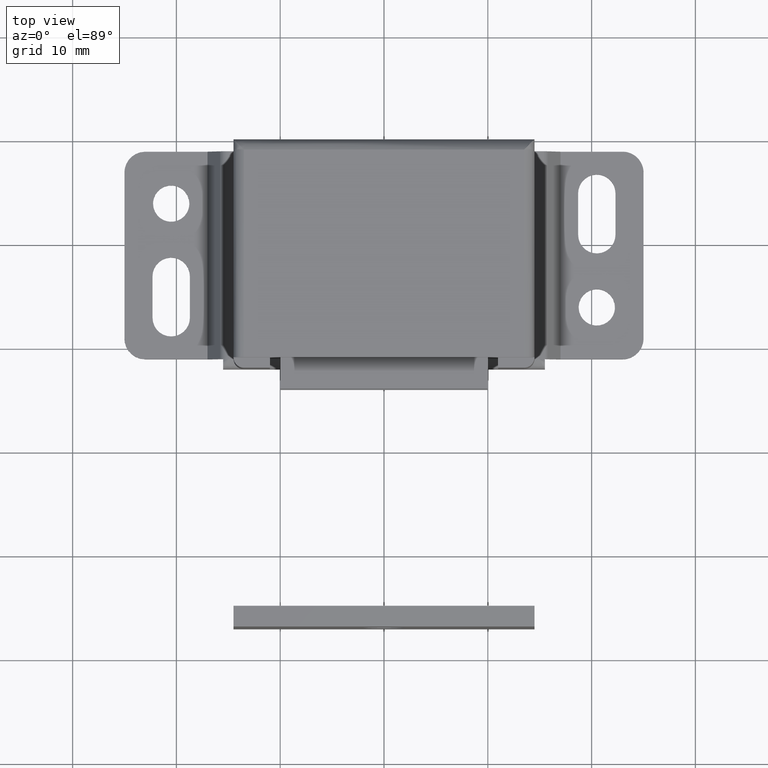
[diagram: clean part render]
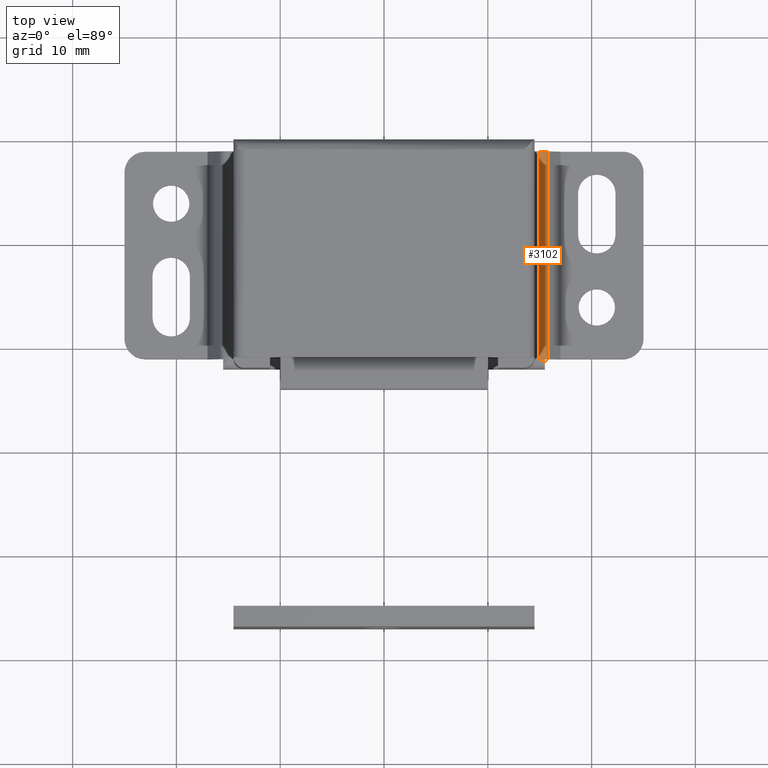
[diagram: same view with one face highlighted and labeled with its STEP entity id]
A machine part, top view. The second image highlights one B-rep face of the part: STEP entity #3102.
In plain terms, the highlighted face is a freeform B-spline surface patch.
Its self-contained STEP definition (entity closure, byte-faithful):
#2103=CARTESIAN_POINT('',(15.500004000000001,-21.339711939408851,3.324267893345355));
#2104=VERTEX_POINT('',#2103);
#2128=CARTESIAN_POINT('',(14.933804000000000,-21.0,3.500000000000000));
#2129=VERTEX_POINT('',#2128);
#2130=CARTESIAN_POINT('',(14.933804000000000,-21.0,3.500000000000000));
#2131=CARTESIAN_POINT('',(15.244174959965996,-21.186218449712641,3.499998955018325));
#2132=CARTESIAN_POINT('',(15.500004000000001,-21.339711939408851,3.324267893345355));
#2140=(BOUNDED_CURVE()B_SPLINE_CURVE(2,(#2130,#2131,#2132),.UNSPECIFIED.,.F.,.U.)CURVE()GEOMETRIC_REPRESENTATION_ITEM()QUASI_UNIFORM_CURVE()RATIONAL_B_SPLINE_CURVE((1.0,0.955057537448198,1.0))REPRESENTATION_ITEM(''));
#2141=EDGE_CURVE('',#2129,#2104,#2140,.T.);
#3036=CARTESIAN_POINT('',(15.808302499630591,-21.848204737894068,2.985028618461025));
#3037=CARTESIAN_POINT('',(15.808302499630591,-0.478794881552648,2.985028618461025));
#3038=CARTESIAN_POINT('',(15.506432615568555,-21.848204737894068,3.529294840959278));
#3039=CARTESIAN_POINT('',(15.506432615568555,-0.478794881552648,3.529294840959278));
#3040=CARTESIAN_POINT('',(14.884804801061978,-21.848204737894076,3.498798806989028));
#3041=CARTESIAN_POINT('',(14.884804801061978,-0.478794881552648,3.498798806989028));
#3049=(BOUNDED_SURFACE()B_SPLINE_SURFACE(1,2,((#3036,#3038,#3040),(#3037,#3039,#3041)),.UNSPECIFIED.,.F.,.F.,.U.)B_SPLINE_SURFACE_WITH_KNOTS((2,2),(3,3),(0.0,21.369409856341420),(0.0,0.996613262850046),.UNSPECIFIED.)GEOMETRIC_REPRESENTATION_ITEM()RATIONAL_B_SPLINE_SURFACE(((1.0,0.848562717314179,0.998974243457680),(1.0,0.848562717314179,0.998974243457680)))REPRESENTATION_ITEM('')SURFACE());
#3050=CARTESIAN_POINT('',(14.933804221030920,-1.0,3.500000000000000));
#3051=VERTEX_POINT('',#3050);
#3052=CARTESIAN_POINT('',(14.933804000000000,-21.0,3.500000000000000));
#3053=CARTESIAN_POINT('',(14.933804221030920,-1.0,3.500000000000000));
#3054=QUASI_UNIFORM_CURVE('',1,(#3052,#3053),.UNSPECIFIED.,.F.,.U.);
#3055=EDGE_CURVE('',#2129,#3051,#3054,.T.);
#3056=ORIENTED_EDGE('',*,*,#3055,.F.);
#3057=ORIENTED_EDGE('',*,*,#2141,.T.);
#3058=CARTESIAN_POINT('',(15.500004000000001,-21.0,3.324267893345355));
#3059=VERTEX_POINT('',#3058);
#3060=CARTESIAN_POINT('',(15.500004000000001,-21.0,3.324267893345355));
#3061=CARTESIAN_POINT('',(15.500004000000001,-21.339711939408851,3.324267893345355));
#3062=QUASI_UNIFORM_CURVE('',1,(#3060,#3061),.UNSPECIFIED.,.F.,.U.);
#3063=EDGE_CURVE('',#3059,#2104,#3062,.T.);
#3064=ORIENTED_EDGE('',*,*,#3063,.F.);
#3065=CARTESIAN_POINT('',(15.791297071627300,-21.0,3.014495880621090));
#3066=VERTEX_POINT('',#3065);
#3067=CARTESIAN_POINT('',(15.791297071627310,-21.0,3.014495880621094));
#3068=CARTESIAN_POINT('',(15.679351230011479,-21.000000000000004,3.201072221569998));
#3069=CARTESIAN_POINT('',(15.500004070858610,-21.0,3.324267996500595));
#3077=(BOUNDED_CURVE()B_SPLINE_CURVE(2,(#3067,#3068,#3069),.UNSPECIFIED.,.F.,.U.)CURVE()GEOMETRIC_REPRESENTATION_ITEM()QUASI_UNIFORM_CURVE()RATIONAL_B_SPLINE_CURVE((1.0,0.977137352669355,1.0))REPRESENTATION_ITEM(''));
#3078=EDGE_CURVE('',#3066,#3059,#3077,.T.);
#3079=ORIENTED_EDGE('',*,*,#3078,.F.);
#3080=CARTESIAN_POINT('',(15.791297071627300,-1.0,3.014495880621090));
#3081=VERTEX_POINT('',#3080);
#3082=CARTESIAN_POINT('',(15.791297071627300,-1.0,3.014495880621090));
#3083=CARTESIAN_POINT('',(15.791297071627300,-21.0,3.014495880621090));
#3084=QUASI_UNIFORM_CURVE('',1,(#3082,#3083),.UNSPECIFIED.,.F.,.U.);
#3085=EDGE_CURVE('',#3081,#3066,#3084,.T.);
#3086=ORIENTED_EDGE('',*,*,#3085,.F.);
#3087=CARTESIAN_POINT('',(14.933804221030920,-1.0,3.500000000000000));
#3088=CARTESIAN_POINT('',(15.499994503598565,-1.0,3.500000000000000));
#3089=CARTESIAN_POINT('',(15.791297071627310,-1.0,3.014495880621095));
#3097=(BOUNDED_CURVE()B_SPLINE_CURVE(2,(#3087,#3088,#3089),.UNSPECIFIED.,.F.,.U.)CURVE()GEOMETRIC_REPRESENTATION_ITEM()QUASI_UNIFORM_CURVE()RATIONAL_B_SPLINE_CURVE((1.0,0.870199942720377,1.0))REPRESENTATION_ITEM(''));
#3098=EDGE_CURVE('',#3051,#3081,#3097,.T.);
#3099=ORIENTED_EDGE('',*,*,#3098,.F.);
#3100=EDGE_LOOP('',(#3056,#3057,#3064,#3079,#3086,#3099));
#3101=FACE_OUTER_BOUND('',#3100,.T.);
#3102=ADVANCED_FACE('',(#3101),#3049,.T.);